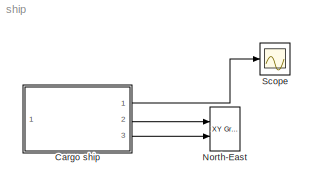
MODEL ship
KIND model
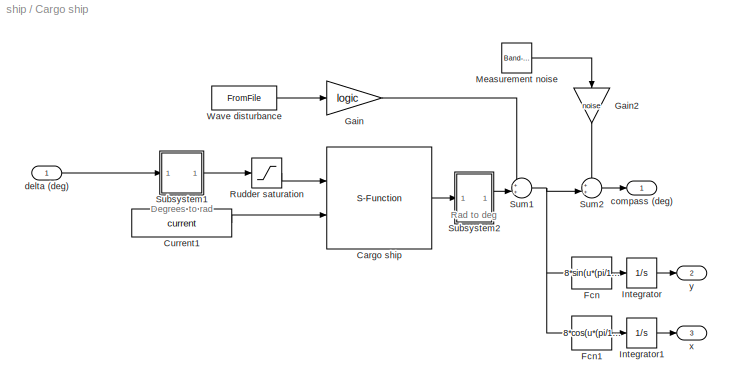
BLOCK [SubSystem] Cargo ship
  FunctionWithSeparateData = off
  MaskHideContents = off
  MinAlgLoopOccurrences = off
  Opaque = off
  Ports = [1, 3]
  PropExecContextOutsideSubsystem = off
  RTWSystemCode = Auto
  RequestExecContextInheritance = off
  SID = 1
BLOCK [S-Function] Cargo ship/Cargo ship
  EnableBusSupport = off
  FunctionName = Cargoship
  Ports = [2, 1]
  SID = 3
BLOCK [Constant] Cargo ship/Current1
  SID = 4
  Value = current
BLOCK [Fcn] Cargo ship/Fcn
  Expr = 8*sin(u*(pi/180))
  SID = 5
BLOCK [Fcn] Cargo ship/Fcn1
  Expr = 8*cos(u*(pi/180))
  SID = 6
BLOCK [Gain] Cargo ship/Gain
  Gain = logic
  SID = 7
BLOCK [Gain] Cargo ship/Gain2
  Gain = noise
  SID = 8
BLOCK [Integrator] Cargo ship/Integrator
  Ports = [1, 1]
  SID = 9
BLOCK [Integrator] Cargo ship/Integrator1
  Ports = [1, 1]
  SID = 10
BLOCK [Reference] Cargo ship/Measurement noise  REF=simulink/Sources/Band-Limited\nWhite Noise
  Cov = [0.001]
  Ports = [0, 1]
  SID = 11
  SourceBlock = simulink/Sources/Band-Limited\nWhite Noise
  SourceType = Band-Limited White Noise.
  Ts = .5
  VectorParams1D = on
  seed = [23341]
BLOCK [Saturate] Cargo ship/Rudder saturation
  InputPortMap = u0
  LowerLimit = -45*(pi/180)
  Ports = [1, 1]
  SID = 12
  UpperLimit = 45*(pi/180)
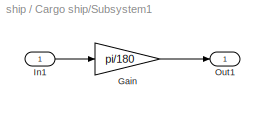
BLOCK [SubSystem] Cargo ship/Subsystem1
  FunctionWithSeparateData = off
  MaskHideContents = off
  MinAlgLoopOccurrences = off
  Opaque = off
  Ports = [1, 1]
  PropExecContextOutsideSubsystem = off
  RTWSystemCode = Auto
  RequestExecContextInheritance = off
  SID = 13
BLOCK [Gain] Cargo ship/Subsystem1/Gain
  Gain = pi/180
  SID = 15
BLOCK [Inport] Cargo ship/Subsystem1/In1
  IconDisplay = Port number
  SID = 14
BLOCK [Outport] Cargo ship/Subsystem1/Out1
  IconDisplay = Port number
  SID = 16
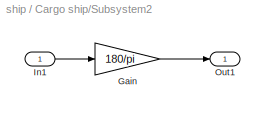
BLOCK [SubSystem] Cargo ship/Subsystem2
  FunctionWithSeparateData = off
  MaskHideContents = off
  MinAlgLoopOccurrences = off
  Opaque = off
  Ports = [1, 1]
  PropExecContextOutsideSubsystem = off
  RTWSystemCode = Auto
  RequestExecContextInheritance = off
  SID = 17
BLOCK [Gain] Cargo ship/Subsystem2/Gain
  Gain = 180/pi
  SID = 19
BLOCK [Inport] Cargo ship/Subsystem2/In1
  IconDisplay = Port number
  SID = 18
BLOCK [Outport] Cargo ship/Subsystem2/Out1
  IconDisplay = Port number
  SID = 20
BLOCK [Sum] Cargo ship/Sum1
  IconShape = round
  InputSameDT = off
  Inputs = ++|
  OutDataTypeStr = Inherit: Inherit via internal rule
  Ports = [2, 1]
  SID = 21
BLOCK [Sum] Cargo ship/Sum2
  IconShape = round
  InputSameDT = off
  Inputs = ++|
  OutDataTypeStr = Inherit: Inherit via internal rule
  Ports = [2, 1]
  SID = 22
BLOCK [FromFile] Cargo ship/Wave disturbance
  FileName = wave.mat
  SID = 23
  SampleTime = 0
BLOCK [Outport] Cargo ship/compass (deg)
  IconDisplay = Port number
  SID = 24
BLOCK [Inport] Cargo ship/delta (deg)
  IconDisplay = Port number
  SID = 2
BLOCK [Outport] Cargo ship/x
  IconDisplay = Port number
  Port = 3
  SID = 26
BLOCK [Outport] Cargo ship/y
  IconDisplay = Port number
  Port = 2
  SID = 25
BLOCK [Reference] North-East  REF=simulink/Sinks/XY Graph
  Ports = [2]
  SID = 29
  SourceBlock = simulink/Sinks/XY Graph
  SourceType = XY scope.
  st = -1
  xmax = 5000
  xmin = -5000
  ymax = 5000
  ymin = -5000
BLOCK [Scope] Scope
  DataFormat = StructureWithTime
  Floating = off
  NumInputPorts = 1
  Ports = [1]
  SID = 30
  SampleTime = 0
  ShowLegends = off
ANNOTATION Cargo ship: Degrees to rad
ANNOTATION Cargo ship: Rad to deg
LINE Cargo ship/Cargo ship:1 -> Cargo ship/Subsystem2:1
LINE Cargo ship/Current1:1 -> Cargo ship/Cargo ship:2
LINE Cargo ship/Fcn1:1 -> Cargo ship/Integrator1:1
LINE Cargo ship/Fcn:1 -> Cargo ship/Integrator:1
LINE Cargo ship/Gain2:1 -> Cargo ship/Sum2:1
LINE Cargo ship/Gain:1 -> Cargo ship/Sum1:1
LINE Cargo ship/Integrator1:1 -> Cargo ship/x:1
LINE Cargo ship/Integrator:1 -> Cargo ship/y:1
LINE Cargo ship/Measurement noise:1 -> Cargo ship/Gain2:1
LINE Cargo ship/Rudder saturation:1 -> Cargo ship/Cargo ship:1
LINE Cargo ship/Subsystem1/Gain:1 -> Cargo ship/Subsystem1/Out1:1
LINE Cargo ship/Subsystem1/In1:1 -> Cargo ship/Subsystem1/Gain:1
LINE Cargo ship/Subsystem1:1 -> Cargo ship/Rudder saturation:1
LINE Cargo ship/Subsystem2/Gain:1 -> Cargo ship/Subsystem2/Out1:1
LINE Cargo ship/Subsystem2/In1:1 -> Cargo ship/Subsystem2/Gain:1
LINE Cargo ship/Subsystem2:1 -> Cargo ship/Sum1:2
NET Cargo ship/Sum1:1 -> Cargo ship/Fcn1:1, Cargo ship/Fcn:1, Cargo ship/Sum2:2
LINE Cargo ship/Sum2:1 -> Cargo ship/compass (deg):1
LINE Cargo ship/Wave disturbance:1 -> Cargo ship/Gain:1
LINE Cargo ship/delta (deg):1 -> Cargo ship/Subsystem1:1
LINE Cargo ship:1 -> Scope:1
LINE Cargo ship:2 -> North-East:1
LINE Cargo ship:3 -> North-East:2
note: NET lines group one-source signal fan-out (src -> all destinations, sorted); 1:1 wires keep LINE
